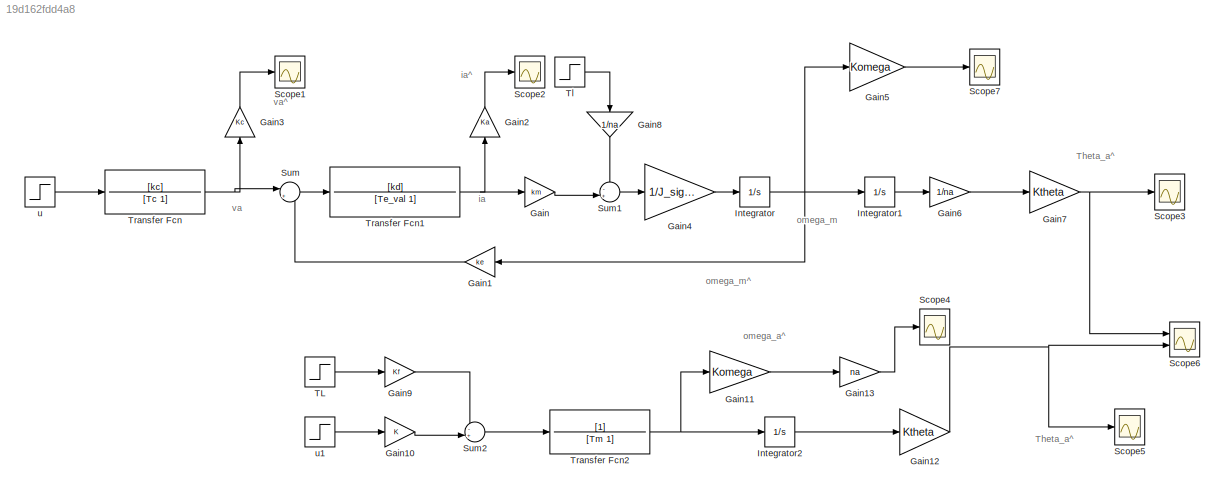
MODEL slx_19d162fdd4a8
KIND model
CONFIG AbsTol = auto
CONFIG EnableMultiTasking = off
CONFIG FixedStep = 1e-4
CONFIG MaxStep = auto
CONFIG MinStep = auto
CONFIG RelTol = 1e-3
CONFIG SampleTimeConstraint = Unconstrained
CONFIG SolverName = FixedStepAuto
CONFIG StartTime = 0.0
CONFIG StopTime = Tmdl
BLOCK [Gain] Gain
  Gain = km
BLOCK [Gain] Gain1
  Gain = ke
  NameLocation = top
BLOCK [Gain] Gain10
  Gain = K
BLOCK [Gain] Gain11
  Gain = Komega
BLOCK [Gain] Gain12
  Gain = Ktheta
BLOCK [Gain] Gain13
  Gain = na
BLOCK [Gain] Gain2
  Gain = Ka
  NameLocation = right
BLOCK [Gain] Gain3
  Gain = Kc
  NameLocation = right
BLOCK [Gain] Gain4
  Gain = 1/J_sigma
BLOCK [Gain] Gain5
  Gain = Komega
BLOCK [Gain] Gain6
  Gain = 1/na
BLOCK [Gain] Gain7
  Gain = Ktheta
BLOCK [Gain] Gain8
  Gain = 1/na
  NameLocation = left
BLOCK [Gain] Gain9
  Gain = Kf
BLOCK [Integrator] Integrator
  Ports = [1, 1]
BLOCK [Integrator] Integrator1
  Ports = [1, 1]
BLOCK [Integrator] Integrator2
  Ports = [1, 1]
BLOCK [Scope] Scope1
  Floating = off
  NumInputPorts = 1
  Ports = [1]
  ScopeSpecificationString = Simulink.scopes.TimeScopeBlockCfg('CurrentConfiguration', extmgr.ConfigurationSet(extmgr.Configuration('Core','General UI',true,'FigureColor',[1 1 1]),extmgr.Configuration('Core','Source UI',true),extmgr.Configuration('Sources','WiredSimulink',true,'DataLoggingVariableName','va_s','DataLogging',true),extmgr.Configuration('Visuals','Time Domain',true,'SerializedDisplays',{struct('MinYLimReal','-0.2...<+2409ch>
BLOCK [Scope] Scope2
  Floating = off
  NumInputPorts = 1
  Ports = [1]
  ScopeSpecificationString = Simulink.scopes.TimeScopeBlockCfg('CurrentConfiguration', extmgr.ConfigurationSet(extmgr.Configuration('Core','General UI',true,'FigureColor',[1 1 1]),extmgr.Configuration('Core','Source UI',true),extmgr.Configuration('Sources','WiredSimulink',true,'DataLoggingVariableName','ia_s','DataLogging',true),extmgr.Configuration('Visuals','Time Domain',true,'SerializedDisplays',{struct('MinYLimReal','-0.1...<+2419ch>
BLOCK [Scope] Scope3
  Floating = off
  NumInputPorts = 1
  Ports = [1]
  ScopeSpecificationString = Simulink.scopes.TimeScopeBlockCfg('CurrentConfiguration', extmgr.ConfigurationSet(extmgr.Configuration('Core','General UI',true,'FigureColor',[1 1 1]),extmgr.Configuration('Core','Source UI',true),extmgr.Configuration('Sources','WiredSimulink',true,'DataLoggingVariableName','theta_a_s','DataLogging',true),extmgr.Configuration('Visuals','Time Domain',true,'SerializedDisplays',{struct('MinYLimReal',...<+2377ch>
BLOCK [Scope] Scope4
  Floating = off
  NumInputPorts = 1
  Ports = [1]
  ScopeSpecificationString = Simulink.scopes.TimeScopeBlockCfg('CurrentConfiguration', extmgr.ConfigurationSet(extmgr.Configuration('Core','General UI',true,'FigureColor',[1 1 1]),extmgr.Configuration('Core','Source UI',true),extmgr.Configuration('Sources','WiredSimulink',true,'DataLoggingVariableName','omega_a_s','DataLogging',true),extmgr.Configuration('Visuals','Time Domain',true,'SerializedDisplays',{struct('MinYLimReal',...<+2381ch>
BLOCK [Scope] Scope5
  Floating = off
  NumInputPorts = 1
  Ports = [1]
  ScopeSpecificationString = Simulink.scopes.TimeScopeBlockCfg('CurrentConfiguration', extmgr.ConfigurationSet(extmgr.Configuration('Core','General UI',true,'FigureColor',[1 1 1]),extmgr.Configuration('Core','Source UI',true),extmgr.Configuration('Sources','WiredSimulink',true,'DataLoggingVariableName','theta_a_ss','DataLogging',true),extmgr.Configuration('Visuals','Time Domain',true,'SerializedDisplays',{struct('MinYLimReal'...<+2410ch>
BLOCK [Scope] Scope6
  Floating = off
  NumInputPorts = 2
  Ports = [2]
  ScopeSpecificationString = Simulink.scopes.TimeScopeBlockCfg('CurrentConfiguration', extmgr.ConfigurationSet(extmgr.Configuration('Core','General UI',true,'FigureColor',[1 1 1]),extmgr.Configuration('Core','Source UI',true),extmgr.Configuration('Sources','WiredSimulink',true,'DataLoggingVariableName','ScopeData6'),extmgr.Configuration('Visuals','Time Domain',true,'SerializedDisplays',{struct('MinYLimReal','-0.06281','MaxYLi...<+2381ch>
BLOCK [Scope] Scope7
  Floating = off
  NumInputPorts = 1
  Ports = [1]
  ScopeSpecificationString = Simulink.scopes.TimeScopeBlockCfg('CurrentConfiguration', extmgr.ConfigurationSet(extmgr.Configuration('Core','General UI',true,'FigureColor',[1 1 1]),extmgr.Configuration('Core','Source UI',true),extmgr.Configuration('Sources','WiredSimulink',true,'DataLoggingVariableName','omega_m_s','DataLogging',true),extmgr.Configuration('Visuals','Time Domain',true,'SerializedDisplays',{struct('MinYLimReal',...<+2368ch>
BLOCK [Sum] Sum
  Inputs = |+-
  Ports = [2, 1]
BLOCK [Sum] Sum1
  Inputs = -+|
  Ports = [2, 1]
BLOCK [Sum] Sum2
  Inputs = -+|
  Ports = [2, 1]
BLOCK [Step] TL
  After = Tl
  SampleTime = 0
  Time = 0
BLOCK [Step] Tl
  After = Tl
  SampleTime = 0
  Time = 0
BLOCK [TransferFcn] Transfer Fcn
  Denominator = [Tc 1]
  Numerator = [kc]
BLOCK [TransferFcn] Transfer Fcn1
  Denominator = [Te_val 1]
  Numerator = [kd]
BLOCK [TransferFcn] Transfer Fcn2
  Denominator = [Tm 1]
BLOCK [Step] u
  After = u
  SampleTime = 0
  Time = 0
BLOCK [Step] u1
  After = u
  SampleTime = 0
  Time = 0
ANNOTATION (root): Theta_a^
ANNOTATION (root): ia
ANNOTATION (root): ia^
ANNOTATION (root): omega_a^
ANNOTATION (root): omega_m
ANNOTATION (root): omega_m^
ANNOTATION (root): va
ANNOTATION (root): va^
LINE Gain10:1 -> Sum2:2
LINE Gain11:1 -> Gain13:1
NET Gain12:1 -> Scope5:1, Scope6:2
LINE Gain13:1 -> Scope4:1
LINE Gain1:1 -> Sum:2
LINE Gain2:1 -> Scope2:1
LINE Gain3:1 -> Scope1:1
LINE Gain4:1 -> Integrator:1
LINE Gain5:1 -> Scope7:1
LINE Gain6:1 -> Gain7:1
NET Gain7:1 -> Scope3:1, Scope6:1
LINE Gain8:1 -> Sum1:1
LINE Gain9:1 -> Sum2:1
LINE Gain:1 -> Sum1:2
LINE Integrator1:1 -> Gain6:1
LINE Integrator2:1 -> Gain12:1
NET Integrator:1 -> Gain1:1, Gain5:1, Integrator1:1
LINE Sum1:1 -> Gain4:1
LINE Sum2:1 -> Transfer Fcn2:1
LINE Sum:1 -> Transfer Fcn1:1
LINE TL:1 -> Gain9:1
LINE Tl:1 -> Gain8:1
NET Transfer Fcn1:1 -> Gain2:1, Gain:1
NET Transfer Fcn2:1 -> Gain11:1, Integrator2:1
NET Transfer Fcn:1 -> Gain3:1, Sum:1
LINE u1:1 -> Gain10:1
LINE u:1 -> Transfer Fcn:1
note: NET lines group one-source signal fan-out (src -> all destinations, sorted); 1:1 wires keep LINE
